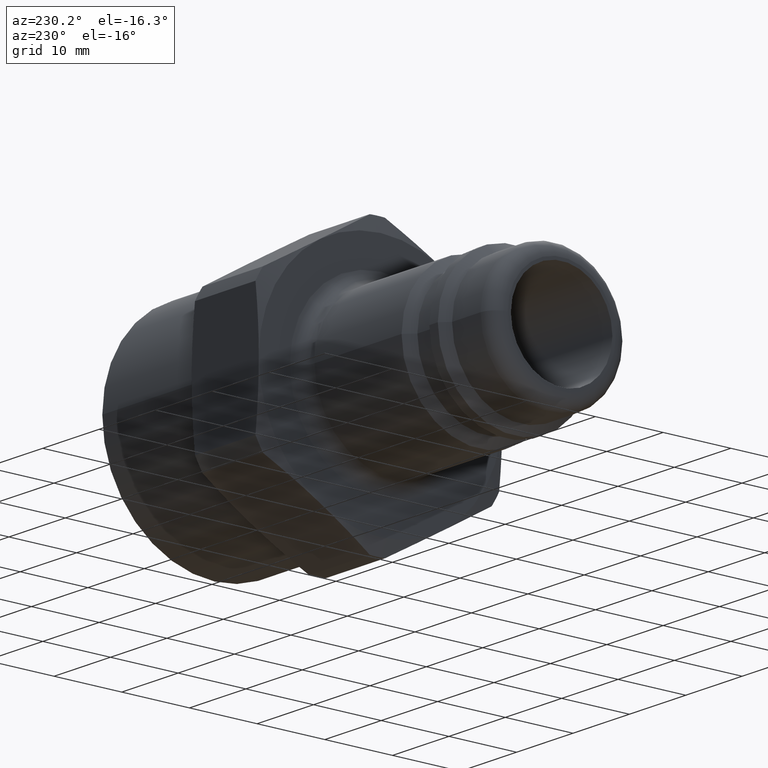
[diagram: clean part render]
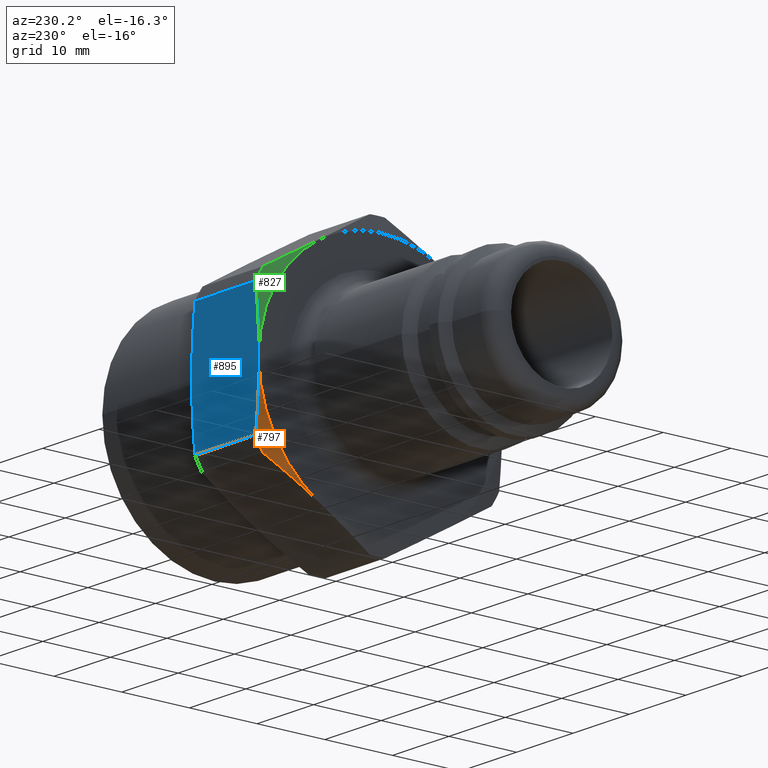
[diagram: same view with three faces highlighted in distinct colors, each labeled with its STEP entity id]
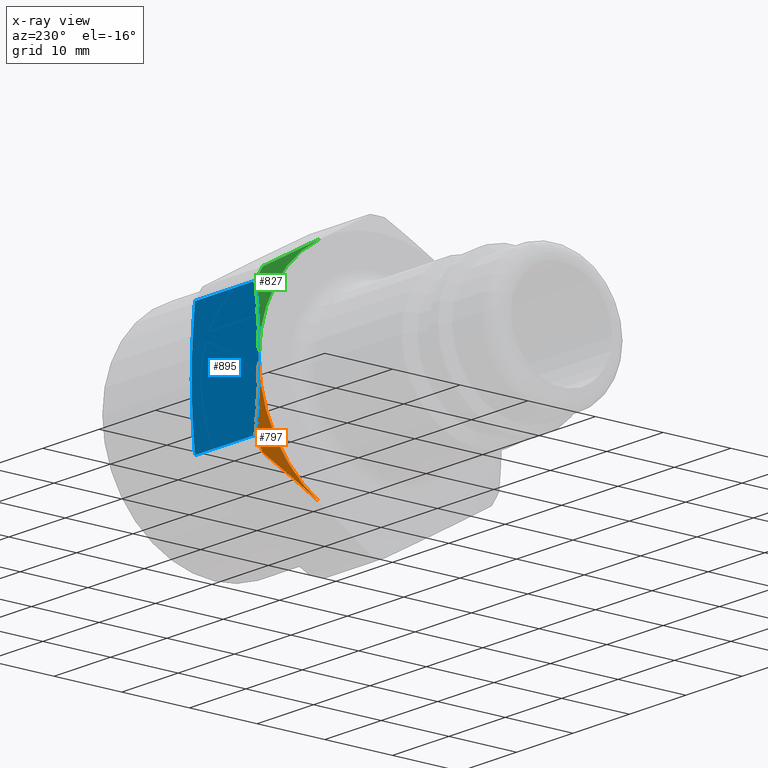
[diagram: x-ray of the same camera — body ghosted, the three highlighted faces saturated]
A machine part, auxiliary view with three faces highlighted in distinct colors.
The next image is the same camera in x-ray (body ghosted, the three faces saturated) — at least one of them is partly hidden behind the body in this view.
Their STEP definitions:

[orange] entity #797 — the highlighted conical surface has half-angle 75 deg.
#73=CARTESIAN_POINT('',(32.682789493537697,16.891322370173452,-11.032400173438145));
#74=VERTEX_POINT('',#73);
#75=CARTESIAN_POINT('',(32.100000000000009,8.999999999999986,-15.588457268119901));
#76=VERTEX_POINT('',#75);
#77=CARTESIAN_POINT('',(32.682789493537697,16.89132237017343,-11.032400173438162));
#78=CARTESIAN_POINT('',(32.100000000000009,12.72085927080866,-13.440218166501808));
#79=CARTESIAN_POINT('',(32.100000000000001,8.999999999999986,-15.588457268119903));
#87=(BOUNDED_CURVE()B_SPLINE_CURVE(2,(#77,#78,#79),.UNSPECIFIED.,.F.,.U.)B_SPLINE_CURVE_WITH_KNOTS((3,3),(0.0,0.91349749588939),.UNSPECIFIED.)CURVE()GEOMETRIC_REPRESENTATION_ITEM()RATIONAL_B_SPLINE_CURVE((1.0,1.029765345438803,1.0))REPRESENTATION_ITEM(''));
#88=EDGE_CURVE('',#74,#76,#87,.T.);
#668=CARTESIAN_POINT('',(32.682789493537697,18.0,-9.112114189363522));
#669=VERTEX_POINT('',#668);
#670=CARTESIAN_POINT('',(32.682789493537697,0.0,0.0));
#671=DIRECTION('',(1.0,0.0,0.0));
#672=DIRECTION('',(0.0,1.0,0.0));
#673=AXIS2_PLACEMENT_3D('',#670,#671,#672);
#674=CIRCLE('',#673,20.175000000000001);
#675=EDGE_CURVE('',#74,#669,#674,.T.);
#766=CARTESIAN_POINT('',(32.391394746768853,0.0,0.0));
#767=DIRECTION('',(1.0,0.0,0.0));
#768=DIRECTION('',(0.0,1.0,0.0));
#769=AXIS2_PLACEMENT_3D('',#766,#767,#768);
#770=CONICAL_SURFACE('',#769,19.087499999999999,75.000000000000057);
#771=ORIENTED_EDGE('',*,*,#88,.T.);
#772=CARTESIAN_POINT('',(32.100000000000001,18.0,0.0));
#773=VERTEX_POINT('',#772);
#774=CARTESIAN_POINT('',(32.100000000000001,0.0,0.0));
#775=DIRECTION('',(1.0,0.0,0.0));
#776=DIRECTION('',(0.0,1.0,0.0));
#777=AXIS2_PLACEMENT_3D('',#774,#775,#776);
#778=CIRCLE('',#777,18.0);
#779=EDGE_CURVE('',#76,#773,#778,.T.);
#780=ORIENTED_EDGE('',*,*,#779,.T.);
#781=CARTESIAN_POINT('',(32.100000000000009,18.0,0.0));
#782=CARTESIAN_POINT('',(32.100000000000016,18.0,-4.296478203236304));
#783=CARTESIAN_POINT('',(32.682789493537697,18.0,-9.112114189363501));
#791=(BOUNDED_CURVE()B_SPLINE_CURVE(2,(#781,#782,#783),.UNSPECIFIED.,.F.,.U.)B_SPLINE_CURVE_WITH_KNOTS((3,3),(0.91349749588939,1.826994991778779),.UNSPECIFIED.)CURVE()GEOMETRIC_REPRESENTATION_ITEM()RATIONAL_B_SPLINE_CURVE((1.0,1.029765345438786,1.0))REPRESENTATION_ITEM(''));
#792=EDGE_CURVE('',#773,#669,#791,.T.);
#793=ORIENTED_EDGE('',*,*,#792,.T.);
#794=ORIENTED_EDGE('',*,*,#675,.F.);
#795=EDGE_LOOP('',(#771,#780,#793,#794));
#796=FACE_OUTER_BOUND('',#795,.T.);
#797=ADVANCED_FACE('',(#796),#770,.T.);

[blue] entity #895 — the highlighted planar face has unit normal (0, -1, 0).
#494=CARTESIAN_POINT('',(43.999999999999993,18.0,0.0));
#495=VERTEX_POINT('',#494);
#503=CARTESIAN_POINT('',(43.417210506462297,18.0,9.112114189363522));
#504=VERTEX_POINT('',#503);
#505=CARTESIAN_POINT('',(43.999999999999993,18.0,0.0));
#506=CARTESIAN_POINT('',(44.0,18.0,4.296478203236303));
#507=CARTESIAN_POINT('',(43.417210506462297,18.0,9.11211418936356));
#515=(BOUNDED_CURVE()B_SPLINE_CURVE(2,(#505,#506,#507),.UNSPECIFIED.,.F.,.U.)B_SPLINE_CURVE_WITH_KNOTS((3,3),(0.913497495889396,1.826994991778791),.UNSPECIFIED.)CURVE()GEOMETRIC_REPRESENTATION_ITEM()RATIONAL_B_SPLINE_CURVE((1.0,1.029765345438735,1.0))REPRESENTATION_ITEM(''));
#516=EDGE_CURVE('',#495,#504,#515,.T.);
#606=CARTESIAN_POINT('',(43.417210506462297,18.0,-9.112114189363522));
#607=VERTEX_POINT('',#606);
#615=CARTESIAN_POINT('',(43.417210506462297,18.0,-9.11211418936356));
#616=CARTESIAN_POINT('',(44.0,18.0,-4.296478203236303));
#617=CARTESIAN_POINT('',(43.999999999999993,18.0,0.0));
#625=(BOUNDED_CURVE()B_SPLINE_CURVE(2,(#615,#616,#617),.UNSPECIFIED.,.F.,.U.)B_SPLINE_CURVE_WITH_KNOTS((3,3),(0.0,0.913497495889396),.UNSPECIFIED.)CURVE()GEOMETRIC_REPRESENTATION_ITEM()RATIONAL_B_SPLINE_CURVE((1.0,1.029765345438735,1.0))REPRESENTATION_ITEM(''));
#626=EDGE_CURVE('',#607,#495,#625,.T.);
#668=CARTESIAN_POINT('',(32.682789493537697,18.0,-9.112114189363522));
#669=VERTEX_POINT('',#668);
#677=CARTESIAN_POINT('',(32.682789493537697,18.0,-9.112114189363522));
#678=DIRECTION('',(1.0,0.0,0.0));
#679=VECTOR('',#678,10.734421012924599);
#680=LINE('',#677,#679);
#681=EDGE_CURVE('',#669,#607,#680,.T.);
#694=CARTESIAN_POINT('',(32.682789493537697,18.0,9.112114189363522));
#695=VERTEX_POINT('',#694);
#696=CARTESIAN_POINT('',(43.417210506462297,18.0,9.112114189363522));
#697=DIRECTION('',(-1.0,0.0,0.0));
#698=VECTOR('',#697,10.734421012924599);
#699=LINE('',#696,#698);
#700=EDGE_CURVE('',#504,#695,#699,.T.);
#772=CARTESIAN_POINT('',(32.100000000000001,18.0,0.0));
#773=VERTEX_POINT('',#772);
#781=CARTESIAN_POINT('',(32.100000000000009,18.0,0.0));
#782=CARTESIAN_POINT('',(32.100000000000016,18.0,-4.296478203236304));
#783=CARTESIAN_POINT('',(32.682789493537697,18.0,-9.112114189363501));
#791=(BOUNDED_CURVE()B_SPLINE_CURVE(2,(#781,#782,#783),.UNSPECIFIED.,.F.,.U.)B_SPLINE_CURVE_WITH_KNOTS((3,3),(0.91349749588939,1.826994991778779),.UNSPECIFIED.)CURVE()GEOMETRIC_REPRESENTATION_ITEM()RATIONAL_B_SPLINE_CURVE((1.0,1.029765345438786,1.0))REPRESENTATION_ITEM(''));
#792=EDGE_CURVE('',#773,#669,#791,.T.);
#805=CARTESIAN_POINT('',(32.682789493537697,18.0,9.112114189363501));
#806=CARTESIAN_POINT('',(32.100000000000016,18.0,4.296478203236304));
#807=CARTESIAN_POINT('',(32.100000000000009,18.0,0.0));
#815=(BOUNDED_CURVE()B_SPLINE_CURVE(2,(#805,#806,#807),.UNSPECIFIED.,.F.,.U.)B_SPLINE_CURVE_WITH_KNOTS((3,3),(0.0,0.91349749588939),.UNSPECIFIED.)CURVE()GEOMETRIC_REPRESENTATION_ITEM()RATIONAL_B_SPLINE_CURVE((1.0,1.029765345438786,1.0))REPRESENTATION_ITEM(''));
#816=EDGE_CURVE('',#695,#773,#815,.T.);
#882=CARTESIAN_POINT('',(31.403086659045094,18.0,0.0));
#883=DIRECTION('',(0.0,-1.0,0.0));
#884=DIRECTION('',(1.0,0.0,0.0));
#885=AXIS2_PLACEMENT_3D('',#882,#883,#884);
#886=PLANE('',#885);
#887=ORIENTED_EDGE('',*,*,#816,.F.);
#888=ORIENTED_EDGE('',*,*,#700,.F.);
#889=ORIENTED_EDGE('',*,*,#516,.F.);
#890=ORIENTED_EDGE('',*,*,#626,.F.);
#891=ORIENTED_EDGE('',*,*,#681,.F.);
#892=ORIENTED_EDGE('',*,*,#792,.F.);
#893=EDGE_LOOP('',(#887,#888,#889,#890,#891,#892));
#894=FACE_OUTER_BOUND('',#893,.T.);
#895=ADVANCED_FACE('',(#894),#886,.F.);

[green] entity #827 — the highlighted conical surface has half-angle 75 deg.
#411=CARTESIAN_POINT('',(32.100000000000009,9.000000000000002,15.588457268119896));
#412=VERTEX_POINT('',#411);
#464=CARTESIAN_POINT('',(32.682789493537697,16.891322370173462,11.032400173438132));
#465=VERTEX_POINT('',#464);
#472=CARTESIAN_POINT('',(32.100000000000009,9.000000000000002,15.588457268119896));
#473=CARTESIAN_POINT('',(32.100000000000009,12.720859270808697,13.440218166501779));
#474=CARTESIAN_POINT('',(32.682789493537697,16.891322370173434,11.032400173438146));
#482=(BOUNDED_CURVE()B_SPLINE_CURVE(2,(#472,#473,#474),.UNSPECIFIED.,.F.,.U.)B_SPLINE_CURVE_WITH_KNOTS((3,3),(0.91349749588939,1.826994991778778),.UNSPECIFIED.)CURVE()GEOMETRIC_REPRESENTATION_ITEM()RATIONAL_B_SPLINE_CURVE((1.0,1.0297653454388,1.0))REPRESENTATION_ITEM(''));
#483=EDGE_CURVE('',#412,#465,#482,.T.);
#694=CARTESIAN_POINT('',(32.682789493537697,18.0,9.112114189363522));
#695=VERTEX_POINT('',#694);
#702=CARTESIAN_POINT('',(32.682789493537697,0.0,0.0));
#703=DIRECTION('',(1.0,0.0,0.0));
#704=DIRECTION('',(0.0,1.0,0.0));
#705=AXIS2_PLACEMENT_3D('',#702,#703,#704);
#706=CIRCLE('',#705,20.175000000000001);
#707=EDGE_CURVE('',#695,#465,#706,.T.);
#772=CARTESIAN_POINT('',(32.100000000000001,18.0,0.0));
#773=VERTEX_POINT('',#772);
#798=CARTESIAN_POINT('',(32.391394746768853,0.0,0.0));
#799=DIRECTION('',(1.0,0.0,0.0));
#800=DIRECTION('',(0.0,1.0,0.0));
#801=AXIS2_PLACEMENT_3D('',#798,#799,#800);
#802=CONICAL_SURFACE('',#801,19.087499999999999,75.000000000000057);
#803=ORIENTED_EDGE('',*,*,#483,.T.);
#804=ORIENTED_EDGE('',*,*,#707,.F.);
#805=CARTESIAN_POINT('',(32.682789493537697,18.0,9.112114189363501));
#806=CARTESIAN_POINT('',(32.100000000000016,18.0,4.296478203236304));
#807=CARTESIAN_POINT('',(32.100000000000009,18.0,0.0));
#815=(BOUNDED_CURVE()B_SPLINE_CURVE(2,(#805,#806,#807),.UNSPECIFIED.,.F.,.U.)B_SPLINE_CURVE_WITH_KNOTS((3,3),(0.0,0.91349749588939),.UNSPECIFIED.)CURVE()GEOMETRIC_REPRESENTATION_ITEM()RATIONAL_B_SPLINE_CURVE((1.0,1.029765345438786,1.0))REPRESENTATION_ITEM(''));
#816=EDGE_CURVE('',#695,#773,#815,.T.);
#817=ORIENTED_EDGE('',*,*,#816,.T.);
#818=CARTESIAN_POINT('',(32.100000000000001,0.0,0.0));
#819=DIRECTION('',(1.0,0.0,0.0));
#820=DIRECTION('',(0.0,1.0,0.0));
#821=AXIS2_PLACEMENT_3D('',#818,#819,#820);
#822=CIRCLE('',#821,18.0);
#823=EDGE_CURVE('',#773,#412,#822,.T.);
#824=ORIENTED_EDGE('',*,*,#823,.T.);
#825=EDGE_LOOP('',(#803,#804,#817,#824));
#826=FACE_OUTER_BOUND('',#825,.T.);
#827=ADVANCED_FACE('',(#826),#802,.T.);